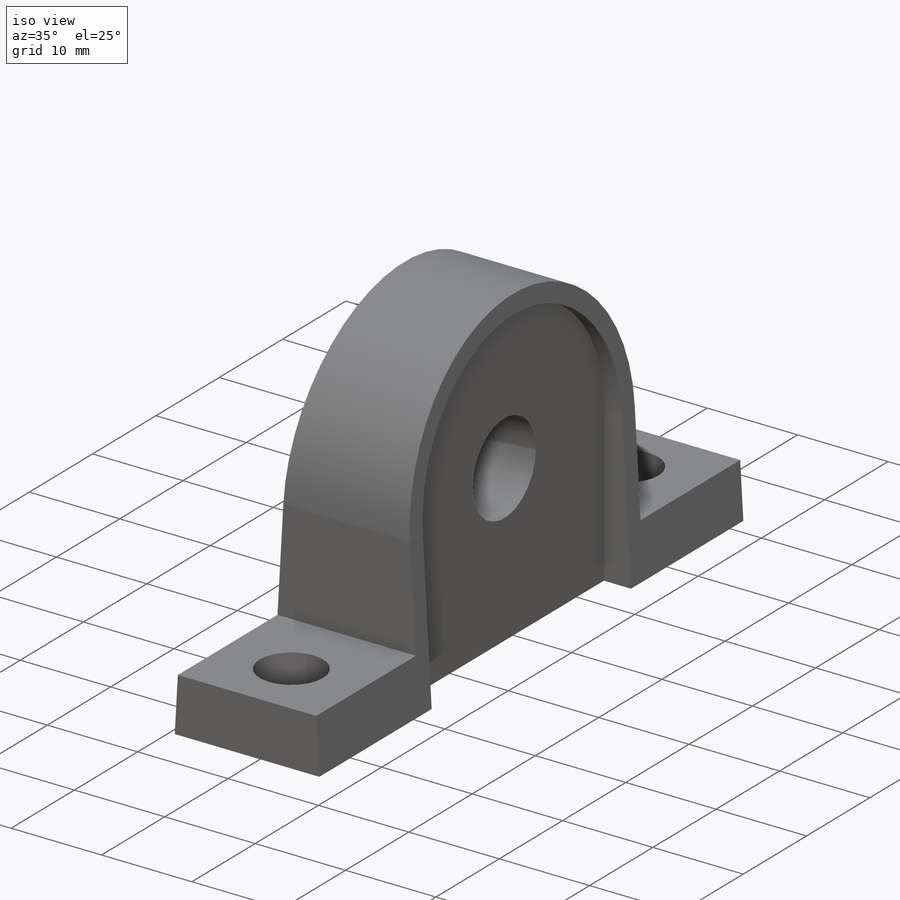
[diagram: iso view]
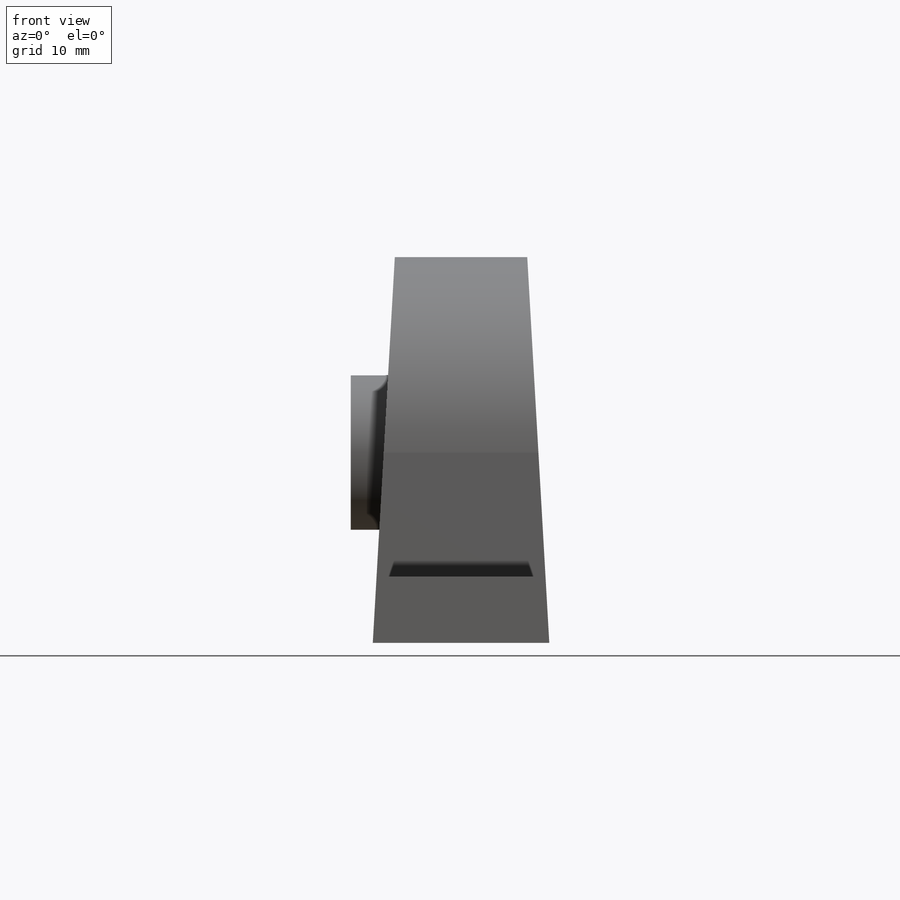
[diagram: front view]
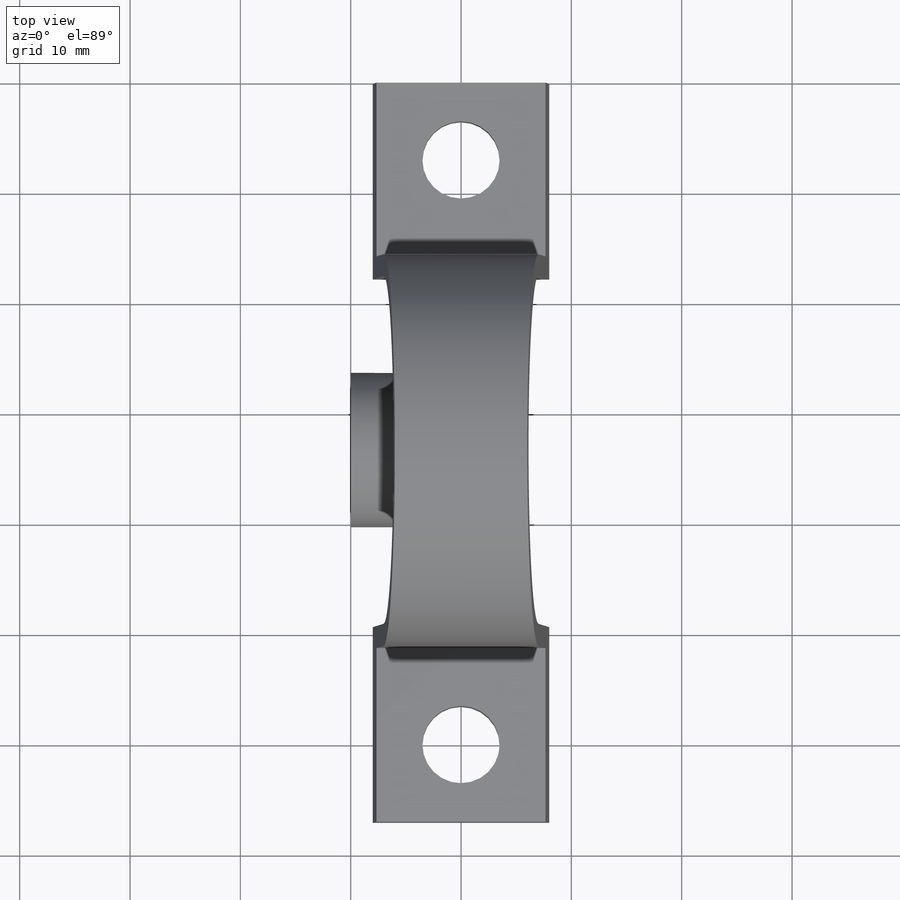
[diagram: top view]
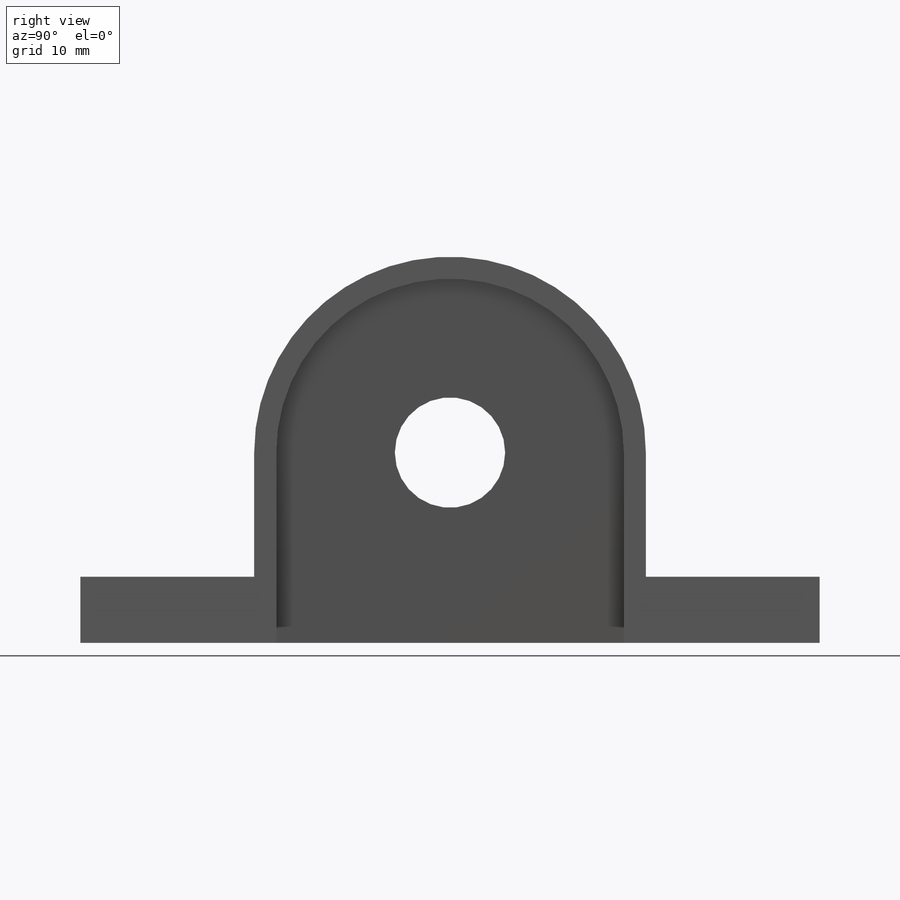
[diagram: right view]
SOLIDWORKS PART (.sldprt)
format: sldprt  version: not decoded by parser v0  size: 904,704 bytes
history: native  units: mm
features: plane x5, cut_extrude x3, sketch x2, extrude x2, material x1, mirror x1 + 4 further entries (+10 scaffold rows collapsed)
feature tree (28):
  scaffold x10  (default folders/planes/origin — collapsed)
  material  "合金钢"
  plane  "前视基准面"
  plane  "上视基准面"
  plane  "右视基准面"
  sketch  "草图1"  dims[D1=8.0mm D2=6.0mm D3=35.0mm]
  extrude  "凸台-拉伸1"  Depth=67mm
  "草图2"
  sketch  "草图图片2"  dims[D3=10.0mm D1=6.0mm D2=35.5mm]
  cut_extrude  "切除-拉伸1"  Depth=30mm
  plane  "基准面1"
  "草图3"
  cut_extrude  "切除-拉伸2"  Depth=3mm
  mirror  "镜向1"
  plane  "基准面2"  Offset=15mm
  "草图4"
  extrude  "凸台-拉伸2"  [1 undecoded]
  "草图5"
  cut_extrude  "切除-拉伸4"  Depth=10mm
decode coverage: 6 of 8 modeling features carry decoded parameters; 4 rows unclassified (native names shown)
note: 1 parameter value undecoded
note: suppression state not decoded; provenance and decode notes live in map.json
